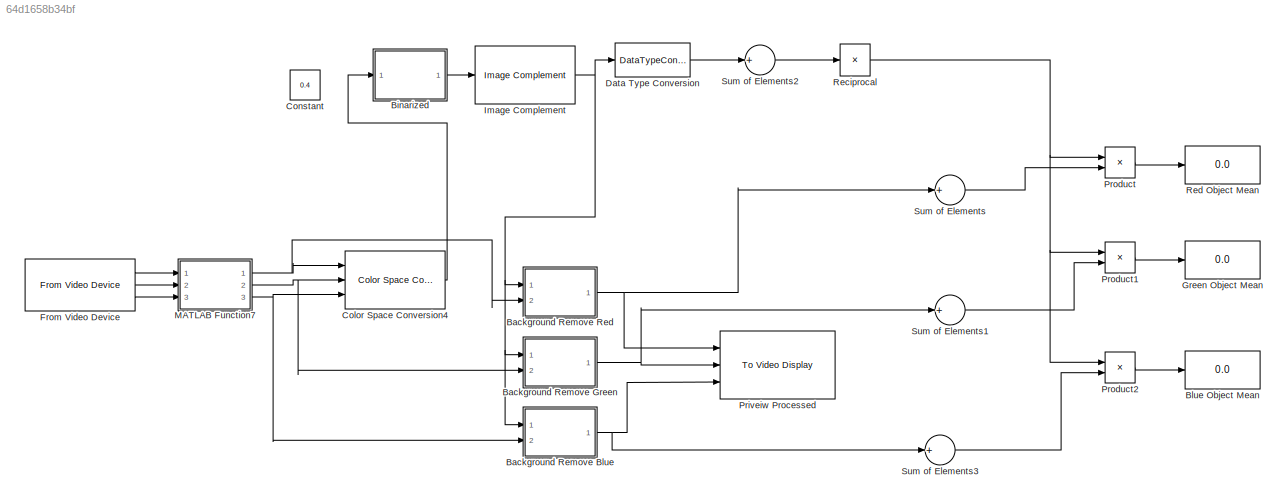
MODEL slx_64d1658b34bf
KIND model
CONFIG AbsTol = auto
CONFIG FixedStep = auto
CONFIG MaxStep = auto
CONFIG MinStep = auto
CONFIG RelTol = 1e-3
CONFIG SampleTimeConstraint = Unconstrained
CONFIG Solver = VariableStepAuto
CONFIG SolverMode = Auto
CONFIG SolverName = VariableStepAuto
CONFIG StartTime = 0.0
CONFIG StopTime = inf
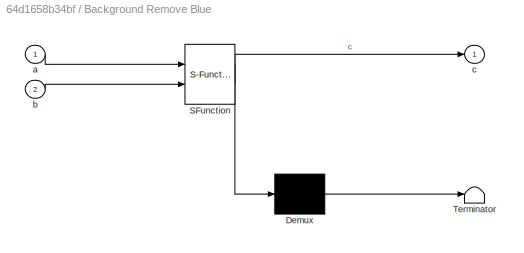
BLOCK [SubSystem] Background Remove Blue
  ErrorFcn = Stateflow.Translate.translate
  PermitHierarchicalResolution = ExplicitOnly
  Ports = [2, 1]
  RequestExecContextInheritance = off
  SFBlockType = MATLAB Function
  TreatAsAtomicUnit = on
  Variant = off
BLOCK [Demux] Background Remove Blue/ Demux 
  Outputs = 1
  Ports = [1, 1]
BLOCK [S-Function] Background Remove Blue/ SFunction 
  EnableBusSupport = on
  FunctionName = sf_sfun
  PortCounts = [2 2]
  Ports = [2, 2]
  SFunctionDeploymentMode = off
  Tag = Stateflow S-Function RGB_Color_Component_ManualThresholding 15
BLOCK [Terminator] Background Remove Blue/ Terminator 
BLOCK [Inport] Background Remove Blue/a
  IconDisplay = Port number
BLOCK [Inport] Background Remove Blue/b
  IconDisplay = Port number
  Port = 2
BLOCK [Outport] Background Remove Blue/c
  IconDisplay = Port number
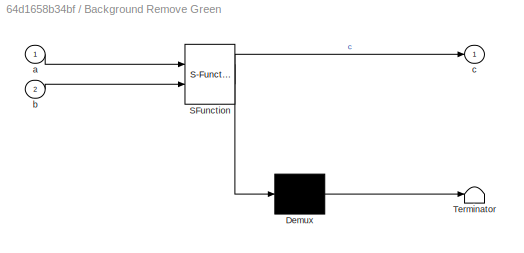
BLOCK [SubSystem] Background Remove Green
  ErrorFcn = Stateflow.Translate.translate
  PermitHierarchicalResolution = ExplicitOnly
  Ports = [2, 1]
  RequestExecContextInheritance = off
  SFBlockType = MATLAB Function
  TreatAsAtomicUnit = on
  Variant = off
BLOCK [Demux] Background Remove Green/ Demux 
  Outputs = 1
  Ports = [1, 1]
BLOCK [S-Function] Background Remove Green/ SFunction 
  EnableBusSupport = on
  FunctionName = sf_sfun
  PortCounts = [2 2]
  Ports = [2, 2]
  SFunctionDeploymentMode = off
  Tag = Stateflow S-Function RGB_Color_Component_ManualThresholding 10
BLOCK [Terminator] Background Remove Green/ Terminator 
BLOCK [Inport] Background Remove Green/a
  IconDisplay = Port number
BLOCK [Inport] Background Remove Green/b
  IconDisplay = Port number
  Port = 2
BLOCK [Outport] Background Remove Green/c
  IconDisplay = Port number
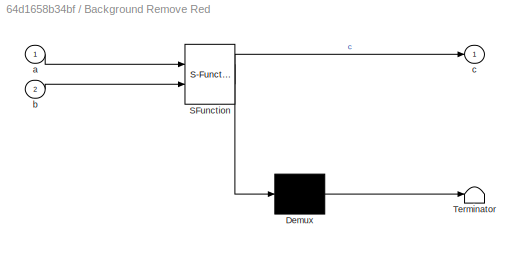
BLOCK [SubSystem] Background Remove Red
  ErrorFcn = Stateflow.Translate.translate
  PermitHierarchicalResolution = ExplicitOnly
  Ports = [2, 1]
  RequestExecContextInheritance = off
  SFBlockType = MATLAB Function
  TreatAsAtomicUnit = on
  Variant = off
BLOCK [Demux] Background Remove Red/ Demux 
  Outputs = 1
  Ports = [1, 1]
BLOCK [S-Function] Background Remove Red/ SFunction 
  EnableBusSupport = on
  FunctionName = sf_sfun
  PortCounts = [2 2]
  Ports = [2, 2]
  SFunctionDeploymentMode = off
  Tag = Stateflow S-Function RGB_Color_Component_ManualThresholding 16
BLOCK [Terminator] Background Remove Red/ Terminator 
BLOCK [Inport] Background Remove Red/a
  IconDisplay = Port number
BLOCK [Inport] Background Remove Red/b
  IconDisplay = Port number
  Port = 2
BLOCK [Outport] Background Remove Red/c
  IconDisplay = Port number
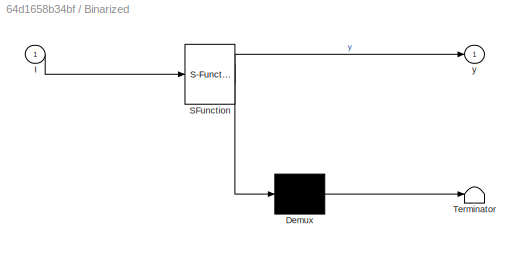
BLOCK [SubSystem] Binarized
  ErrorFcn = Stateflow.Translate.translate
  PermitHierarchicalResolution = ExplicitOnly
  Ports = [1, 1]
  RequestExecContextInheritance = off
  SFBlockType = MATLAB Function
  TreatAsAtomicUnit = on
  Variant = off
BLOCK [Demux] Binarized/ Demux 
  Outputs = 1
  Ports = [1, 1]
BLOCK [S-Function] Binarized/ SFunction 
  EnableBusSupport = on
  FunctionName = sf_sfun
  PortCounts = [1 2]
  Ports = [1, 2]
  SFunctionDeploymentMode = off
  Tag = Stateflow S-Function RGB_Color_Component_ManualThresholding 14
BLOCK [Terminator] Binarized/ Terminator 
BLOCK [Inport] Binarized/I
  IconDisplay = Port number
BLOCK [Outport] Binarized/y
  IconDisplay = Port number
BLOCK [Display] Blue Object Mean
  Decimation = 1
  Ports = [1]
BLOCK [Reference] Color Space Conversion4  REF=visionconversions/Color Space
 Conversion
  Ports = [3, 1]
  SourceBlock = visionconversions/Color Space\n Conversion
  SourceType = Color Space Conversion
BLOCK [Constant] Constant
  SampleTime = 1
  Value = 0.4
BLOCK [DataTypeConversion] Data Type Conversion
  OutDataTypeStr = uint32
  RndMeth = Floor
  SaturateOnIntegerOverflow = off
BLOCK [Reference] From Video Device  REF=imaqlib/From Video Device
  Ports = [0, 3]
  SourceBlock = imaqlib/From Video Device
  SourceType = From Video Device
  UserDataPersistent = on
BLOCK [Display] Green Object Mean
  Decimation = 1
  Ports = [1]
BLOCK [Reference] Image Complement  REF=visionconversions/Image Complement
  Ports = [1, 1]
  SourceBlock = visionconversions/Image Complement
  SourceType = Image Complement
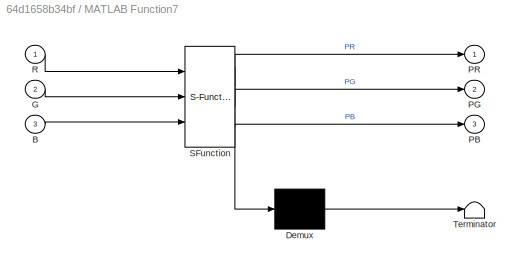
BLOCK [SubSystem] MATLAB Function7
  ErrorFcn = Stateflow.Translate.translate
  PermitHierarchicalResolution = ExplicitOnly
  Ports = [3, 3]
  RequestExecContextInheritance = off
  SFBlockType = MATLAB Function
  TreatAsAtomicUnit = on
  Variant = off
BLOCK [Demux] MATLAB Function7/ Demux 
  Outputs = 1
  Ports = [1, 1]
BLOCK [S-Function] MATLAB Function7/ SFunction 
  EnableBusSupport = on
  FunctionName = sf_sfun
  PortCounts = [3 4]
  Ports = [3, 4]
  SFunctionDeploymentMode = off
  Tag = Stateflow S-Function RGB_Color_Component_ManualThresholding 7
BLOCK [Terminator] MATLAB Function7/ Terminator 
BLOCK [Inport] MATLAB Function7/B
  IconDisplay = Port number
  Port = 3
BLOCK [Inport] MATLAB Function7/G
  IconDisplay = Port number
  Port = 2
BLOCK [Outport] MATLAB Function7/PB
  IconDisplay = Port number
  Port = 3
BLOCK [Outport] MATLAB Function7/PG
  IconDisplay = Port number
  Port = 2
BLOCK [Outport] MATLAB Function7/PR
  IconDisplay = Port number
BLOCK [Inport] MATLAB Function7/R
  IconDisplay = Port number
BLOCK [Reference] Priveiw Processed  REF=visionsinks/To Video Display
  Ports = [3]
  SourceBlock = visionsinks/To Video Display
  SourceType = To Video Display
BLOCK [Product] Product
  InputSameDT = off
  OutDataTypeStr = Inherit: Inherit via internal rule
  Ports = [2, 1]
  RndMeth = Floor
  SaturateOnIntegerOverflow = off
BLOCK [Product] Product1
  InputSameDT = off
  OutDataTypeStr = Inherit: Inherit via internal rule
  Ports = [2, 1]
  RndMeth = Floor
  SaturateOnIntegerOverflow = off
BLOCK [Product] Product2
  InputSameDT = off
  OutDataTypeStr = Inherit: Inherit via internal rule
  Ports = [2, 1]
  RndMeth = Floor
  SaturateOnIntegerOverflow = off
BLOCK [Product] Reciprocal
  InputSameDT = off
  Inputs = /
  OutDataTypeStr = double
  Ports = [1, 1]
  RndMeth = Simplest
BLOCK [Display] Red Object Mean
  Decimation = 1
  Ports = [1]
BLOCK [Sum] Sum of Elements
  AccumDataTypeStr = uint32
  InputSameDT = off
  Inputs = +
  OutDataTypeStr = uint32
  Ports = [1, 1]
  RndMeth = Nearest
  SaturateOnIntegerOverflow = off
BLOCK [Sum] Sum of Elements1
  AccumDataTypeStr = uint32
  InputSameDT = off
  Inputs = +
  OutDataTypeStr = uint32
  Ports = [1, 1]
  RndMeth = Nearest
  SaturateOnIntegerOverflow = off
BLOCK [Sum] Sum of Elements2
  AccumDataTypeStr = uint32
  InputSameDT = off
  Inputs = +
  OutDataTypeStr = uint32
  Ports = [1, 1]
  RndMeth = Nearest
  SaturateOnIntegerOverflow = off
BLOCK [Sum] Sum of Elements3
  AccumDataTypeStr = uint32
  InputSameDT = off
  Inputs = +
  OutDataTypeStr = uint32
  Ports = [1, 1]
  RndMeth = Nearest
  SaturateOnIntegerOverflow = off
NET Background Remove Blue:1 -> Priveiw Processed:3, Sum of Elements3:1
NET Background Remove Green:1 -> Priveiw Processed:2, Sum of Elements1:1
NET Background Remove Red:1 -> Priveiw Processed:1, Sum of Elements:1
LINE Binarized:1 -> Image Complement:1
LINE Color Space Conversion4:1 -> Binarized:1
LINE Data Type Conversion:1 -> Sum of Elements2:1
LINE From Video Device:1 -> MATLAB Function7:1
LINE From Video Device:2 -> MATLAB Function7:2
LINE From Video Device:3 -> MATLAB Function7:3
NET Image Complement:1 -> Background Remove Blue:1, Background Remove Green:1, Background Remove Red:1, Data Type Conversion:1
NET MATLAB Function7:1 -> Background Remove Red:2, Color Space Conversion4:1
NET MATLAB Function7:2 -> Background Remove Green:2, Color Space Conversion4:2
NET MATLAB Function7:3 -> Background Remove Blue:2, Color Space Conversion4:3
LINE Product1:1 -> Green Object Mean:1
LINE Product2:1 -> Blue Object Mean:1
LINE Product:1 -> Red Object Mean:1
NET Reciprocal:1 -> Product1:1, Product2:1, Product:1
LINE Sum of Elements1:1 -> Product1:2
LINE Sum of Elements2:1 -> Reciprocal:1
LINE Sum of Elements3:1 -> Product2:2
LINE Sum of Elements:1 -> Product:2
note: NET lines group one-source signal fan-out (src -> all destinations, sorted); 1:1 wires keep LINE
CHART MATLAB Function7 states=1 transitions=1
  STATE_LABEL 'eML_blk_kernel()'
  STATE_LABEL 'SCRIPT:\nfunction [PR,PG,PB] = fcn(R,G,B)\n%#codegen\nIm=cat(3,R,G,B);\nPR= im2double(R);\nPG= im2double(G);\nPB= im2double(B);\nreturn'
CHART Background Remove Green states=1 transitions=1
  STATE_LABEL 'eML_blk_kernel()'
  STATE_LABEL 'SCRIPT:\nfunction c = fcn(a,b)\n%#codegen\nc=uint32(a.*b);\nreturn'
CHART Binarized states=1 transitions=1
  STATE_LABEL 'eML_blk_kernel()'
  STATE_LABEL "SCRIPT:\nfunction y = fcn(I)\n%#codegen\ny=logical(I);\ncoder.extrinsic('graythresh');\nlevel = graythresh(I);\nBW = im2bw(I,level);"
CHART Background Remove Blue states=1 transitions=1
  STATE_LABEL 'eML_blk_kernel()'
  STATE_LABEL 'SCRIPT:\nfunction c = fcn(a,b)\n%#codegen\nc=uint32(a.*b);\nreturn'
CHART Background Remove Red states=1 transitions=1
  STATE_LABEL 'eML_blk_kernel()'
  STATE_LABEL 'SCRIPT:\nfunction c = fcn(a,b)\n%#codegen\nc=uint32(a.*b);\nreturn'
